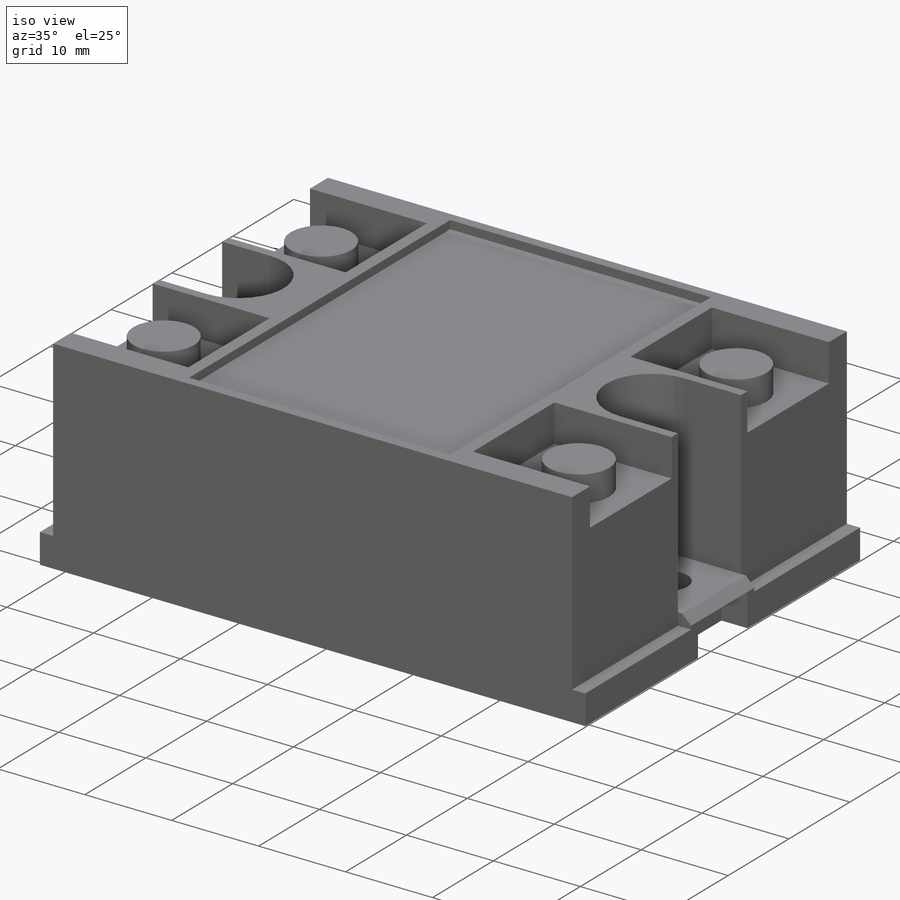
[diagram: iso view]
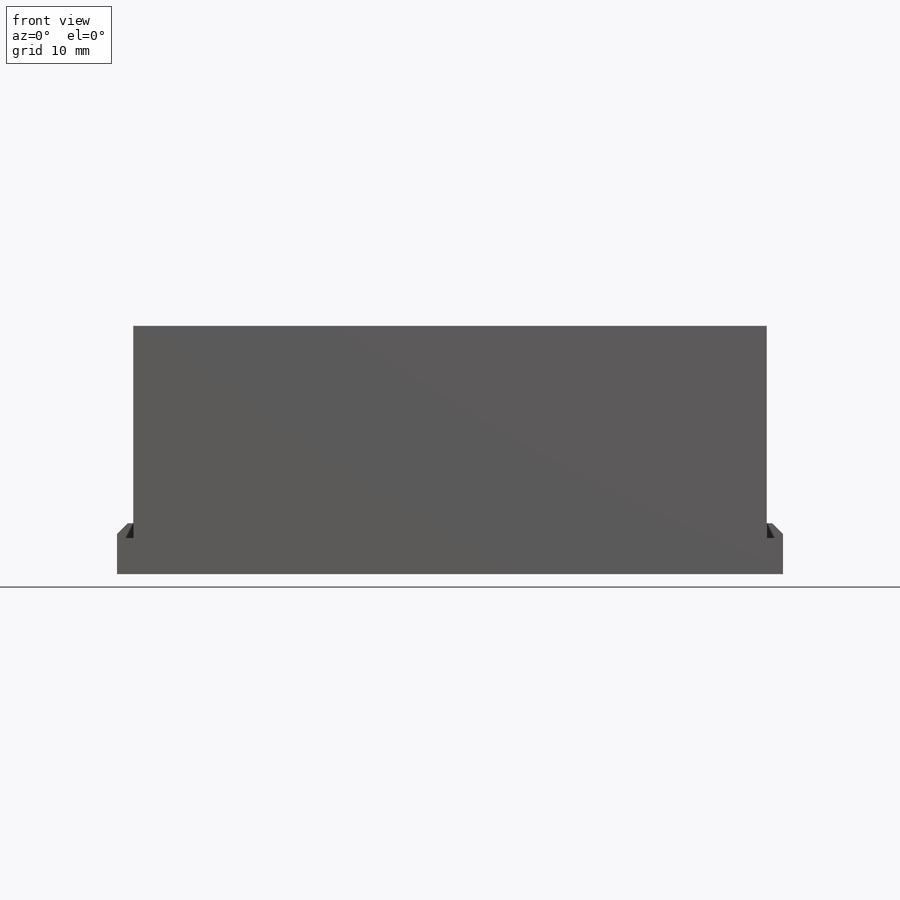
[diagram: front view]
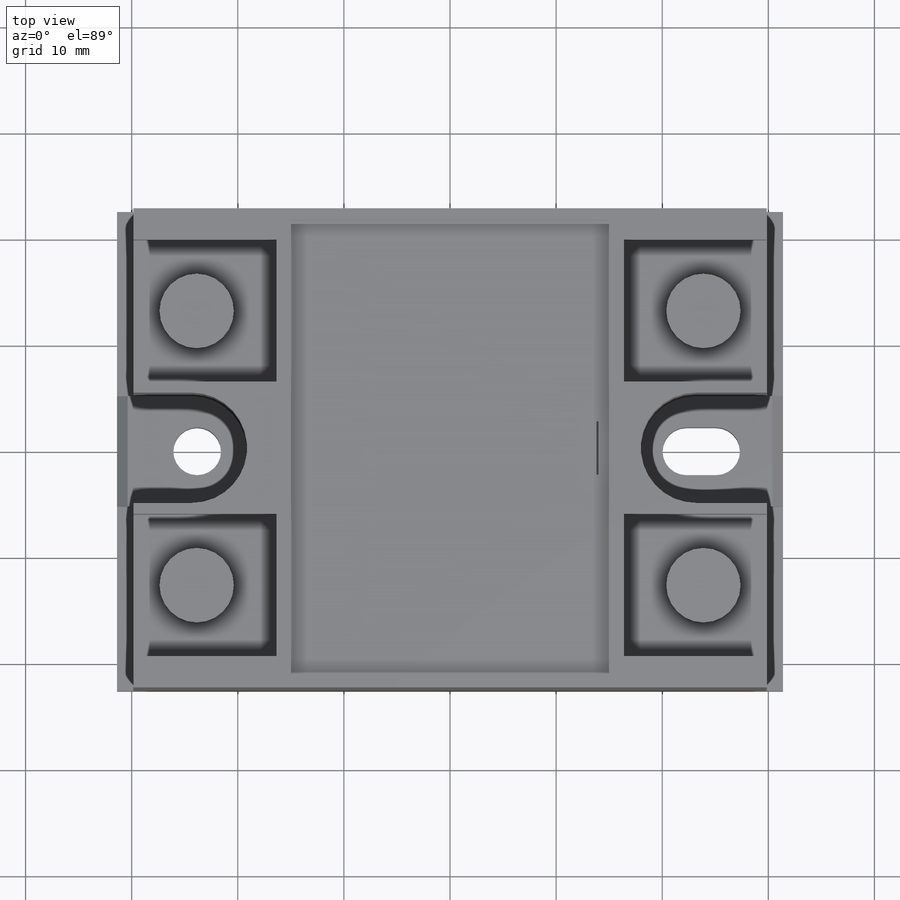
[diagram: top view]
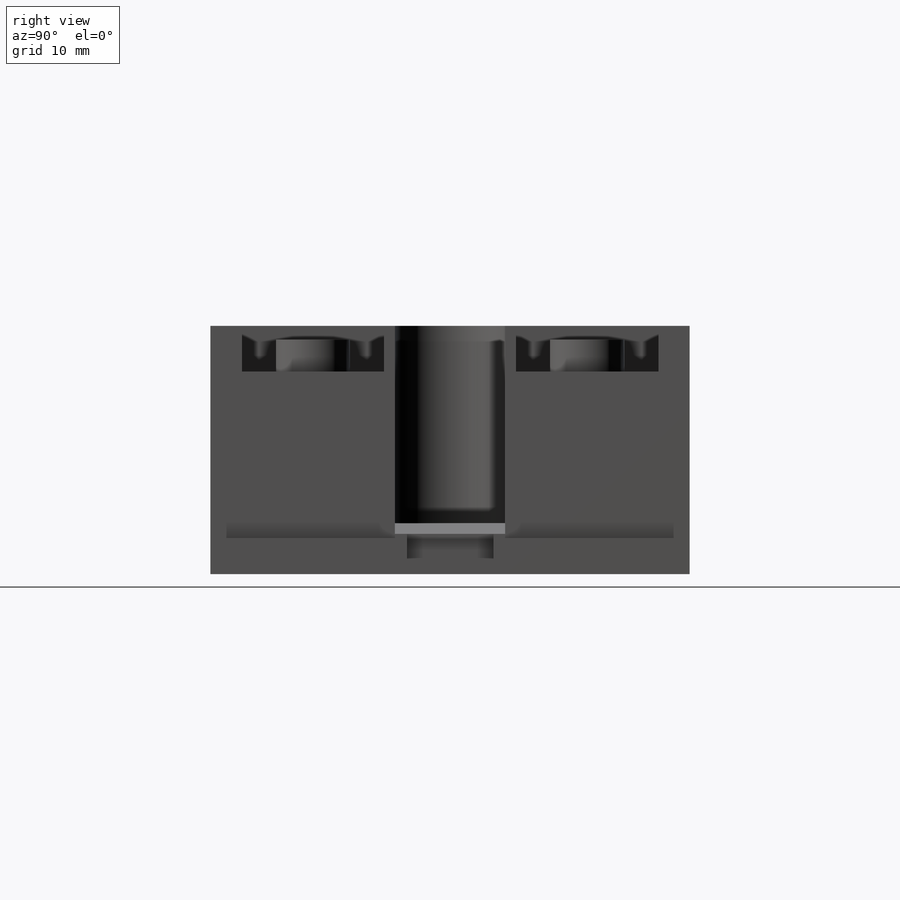
[diagram: right view]
SOLIDWORKS PART (.sldprt)
format: sldprt  version: not decoded by parser v0  size: 494,592 bytes
history: native  units: mm
features: sketch x12, cut_extrude x7, extrude x3, material x1, chamfer x1 (+12 scaffold rows collapsed)
feature tree (36):
  scaffold x12  (default folders/planes/origin — collapsed)
  material  "Material <not specified>"
  sketch  "Sketch1"  dims[D1=62.75mm D2=45.15mm]
  extrude  "Boss-Extrude1"  Depth=23.4mm
  sketch  "Sketch2"  dims[D1=30.0mm D2=42.9mm]
  cut_extrude  "Cut-Extrude1"  Depth=0.95mm
  sketch  "Sketch3"  dims[D1=13.4mm D2=2.95mm D3=15.0mm]
  cut_extrude  "Cut-Extrude2"  Depth=4.3mm
  sketch  "Sketch4"  dims[D1=7.0mm]
  extrude  "Boss-Extrude2"  Depth=3mm
  sketch  "Sketch5"  dims[D1=10.4mm D2=13.4mm D3=12.25mm]
  cut_extrude  "Cut-Extrude3"  Depth=18.6mm
  sketch  "Sketch6"  dims[c1.D1=1.0mm c1.D2=5.0mm c2.D1=1.0mm c2.D5=0.2mm c2.D6=1.0mm c2.D7=5.0mm]
  sketch  "Sketch7"  dims[c1.D3=2.25mm c1.D1=4.05mm c1.D2=4.5mm c2.D3=7.3mm]
  cut_extrude  "Cut-Extrude4"  [1 undecoded]
  sketch  "Sketch8"  dims[D1=4.5mm D2=5.7mm]
  cut_extrude  "Cut-Extrude5"  [1 undecoded]
  sketch  "Sketch9"  dims[D1=59.7mm]
  cut_extrude  "Cut-Extrude6"  Depth=20mm
  sketch  "Sketch11"
  extrude  "Boss-Extrude3"  [1 undecoded]
  chamfer  "Chamfer1"  Distance=1mm Angle=45deg
  sketch  "Sketch10"  dims[D1=8.15mm D2=3.0mm]
  cut_extrude  "Cut-Extrude7"  Depth=3.75mm
  sketch  "Sketch13"
decode coverage: 18 of 23 modeling features carry decoded parameters
note: 3 parameter values undecoded
summary: no parameter record found for 3 features
note: suppression state not decoded; provenance and decode notes live in map.json
